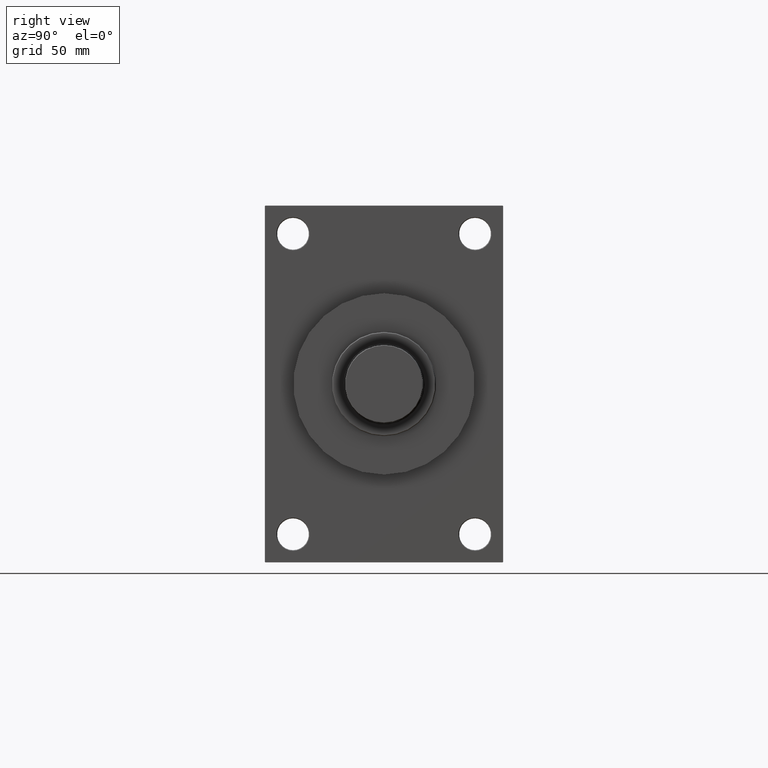
[diagram: clean part render]
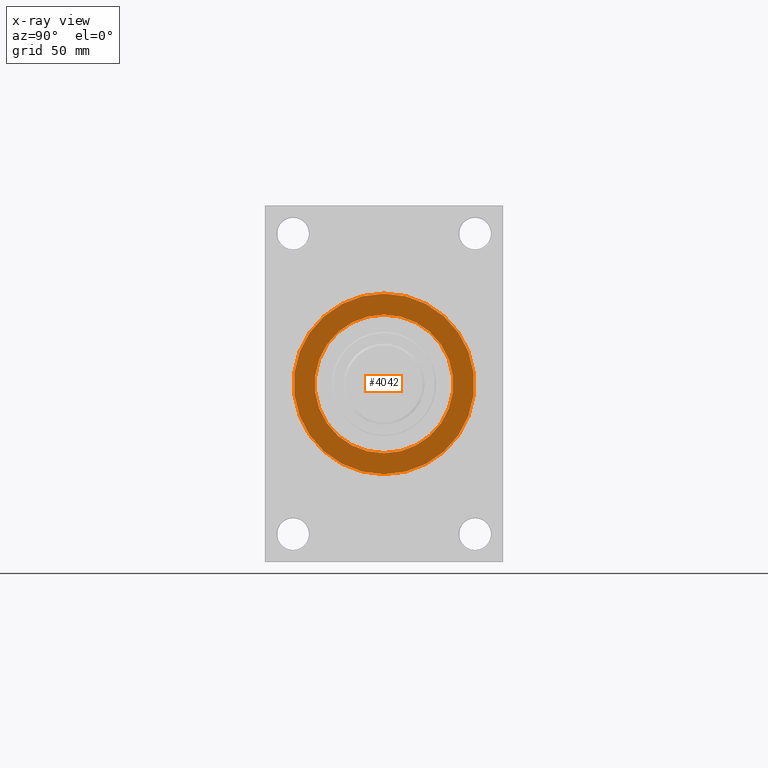
[diagram: x-ray — body ghosted, one internal face saturated and labeled with its STEP entity id]
A machine part, right view, then the same camera in x-ray: the body is ghosted and one INTERNAL B-rep face — a face not visible from any outside direction — is saturated and labeled: STEP entity #4042.
In plain terms, the highlighted planar face has unit normal (-1, 0, 0).
Its self-contained STEP definition (entity closure, byte-faithful):
#3143 = FACE_OUTER_BOUND ( 'NONE', #19072, .T. ) ;
#3828 = CIRCLE ( 'NONE', #25607, 62.50000000000000000 ) ;
#4042 = ADVANCED_FACE ( 'NONE', ( #32128, #3143 ), #7039, .T. ) ;
#4991 = DIRECTION ( 'NONE',  ( 0.000000000000000000, 0.000000000000000000, 1.000000000000000000 ) ) ;
#5413 = DIRECTION ( 'NONE',  ( 0.000000000000000000, 0.000000000000000000, -1.000000000000000000 ) ) ;
#5757 = VERTEX_POINT ( 'NONE', #36236 ) ;
#6632 = AXIS2_PLACEMENT_3D ( 'NONE', #18007, #29206, #21183 ) ;
#7039 = PLANE ( 'NONE',  #6632 ) ;
#7568 = EDGE_CURVE ( 'NONE', #5757, #11397, #28452, .T. ) ;
#8874 = CARTESIAN_POINT ( 'NONE',  ( 219.0000000000000284, 0.000000000000000000, -48.00000000000000711 ) ) ;
#9659 = EDGE_CURVE ( 'NONE', #40036, #11612, #47109, .T. ) ;
#11358 = AXIS2_PLACEMENT_3D ( 'NONE', #40563, #18409, #4991 ) ;
#11397 = VERTEX_POINT ( 'NONE', #46565 ) ;
#11451 = EDGE_CURVE ( 'NONE', #11612, #40036, #31650, .T. ) ;
#11612 = VERTEX_POINT ( 'NONE', #46034 ) ;
#12982 = DIRECTION ( 'NONE',  ( -1.000000000000000000, 0.000000000000000000, -0.000000000000000000 ) ) ;
#13936 = CARTESIAN_POINT ( 'NONE',  ( 219.0000000000000284, 0.000000000000000000, 0.000000000000000000 ) ) ;
#15703 = DIRECTION ( 'NONE',  ( 1.000000000000000000, 0.000000000000000000, 0.000000000000000000 ) ) ;
#16885 = EDGE_CURVE ( 'NONE', #11397, #5757, #3828, .T. ) ;
#18007 = CARTESIAN_POINT ( 'NONE',  ( 219.0000000000000000, 0.000000000000000000, 0.000000000000000000 ) ) ;
#18171 = ORIENTED_EDGE ( 'NONE', *, *, #7568, .F. ) ;
#18409 = DIRECTION ( 'NONE',  ( -1.000000000000000000, 0.000000000000000000, -0.000000000000000000 ) ) ;
#19007 = EDGE_LOOP ( 'NONE', ( #47781, #40259 ) ) ;
#19072 = EDGE_LOOP ( 'NONE', ( #33361, #18171 ) ) ;
#21183 = DIRECTION ( 'NONE',  ( -0.000000000000000000, 0.000000000000000000, 1.000000000000000000 ) ) ;
#23929 = CARTESIAN_POINT ( 'NONE',  ( 219.0000000000000000, -2.602085213965210642E-15, 0.000000000000000000 ) ) ;
#25607 = AXIS2_PLACEMENT_3D ( 'NONE', #23929, #38770, #5413 ) ;
#26172 = CARTESIAN_POINT ( 'NONE',  ( 219.0000000000000000, -2.602085213965210642E-15, 0.000000000000000000 ) ) ;
#27833 = DIRECTION ( 'NONE',  ( 0.000000000000000000, 0.000000000000000000, 1.000000000000000000 ) ) ;
#28452 = CIRCLE ( 'NONE', #39333, 62.50000000000000000 ) ;
#29206 = DIRECTION ( 'NONE',  ( -1.000000000000000000, 0.000000000000000000, -0.000000000000000000 ) ) ;
#31650 = CIRCLE ( 'NONE', #46405, 48.00000000000000711 ) ;
#32128 = FACE_BOUND ( 'NONE', #19007, .T. ) ;
#33361 = ORIENTED_EDGE ( 'NONE', *, *, #16885, .F. ) ;
#36236 = CARTESIAN_POINT ( 'NONE',  ( 219.0000000000000000, 5.051957280705747162E-15, -62.50000000000000000 ) ) ;
#37851 = DIRECTION ( 'NONE',  ( 0.000000000000000000, 0.000000000000000000, -1.000000000000000000 ) ) ;
#38770 = DIRECTION ( 'NONE',  ( 1.000000000000000000, 0.000000000000000000, 0.000000000000000000 ) ) ;
#39333 = AXIS2_PLACEMENT_3D ( 'NONE', #26172, #15703, #37851 ) ;
#40036 = VERTEX_POINT ( 'NONE', #8874 ) ;
#40259 = ORIENTED_EDGE ( 'NONE', *, *, #11451, .F. ) ;
#40563 = CARTESIAN_POINT ( 'NONE',  ( 219.0000000000000284, 0.000000000000000000, 0.000000000000000000 ) ) ;
#46034 = CARTESIAN_POINT ( 'NONE',  ( 219.0000000000000284, 5.878304635907296578E-15, 48.00000000000000711 ) ) ;
#46405 = AXIS2_PLACEMENT_3D ( 'NONE', #13936, #12982, #27833 ) ;
#46565 = CARTESIAN_POINT ( 'NONE',  ( 219.0000000000000000, -2.602085213965210642E-15, 62.50000000000000000 ) ) ;
#47109 = CIRCLE ( 'NONE', #11358, 48.00000000000000711 ) ;
#47781 = ORIENTED_EDGE ( 'NONE', *, *, #9659, .F. ) ;